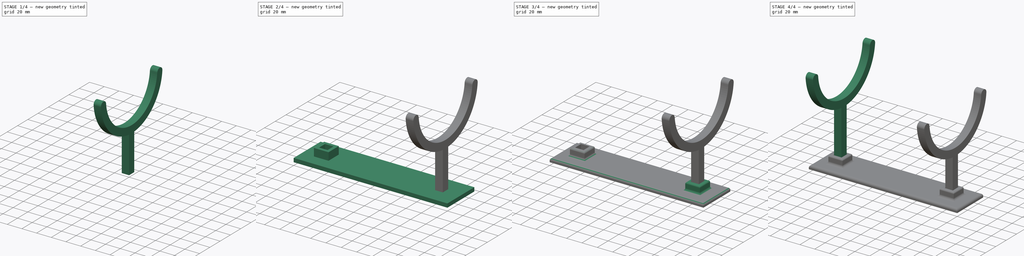
[diagram: build sequence overview — one tinted view per stage of 4, left to right]
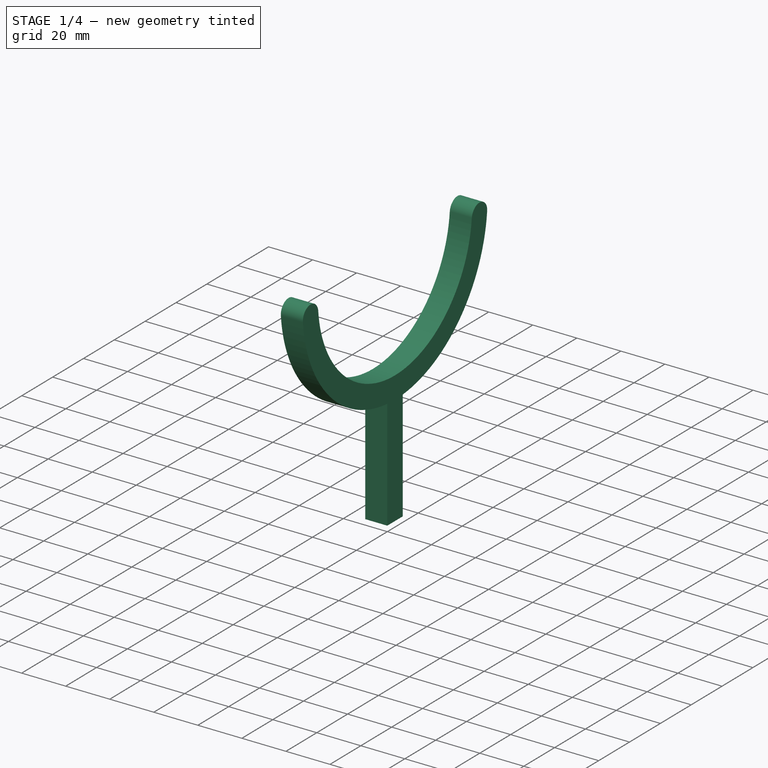
[diagram: stage 1 of 4 — iso view after this stage's code; geometry added in this stage tinted green]
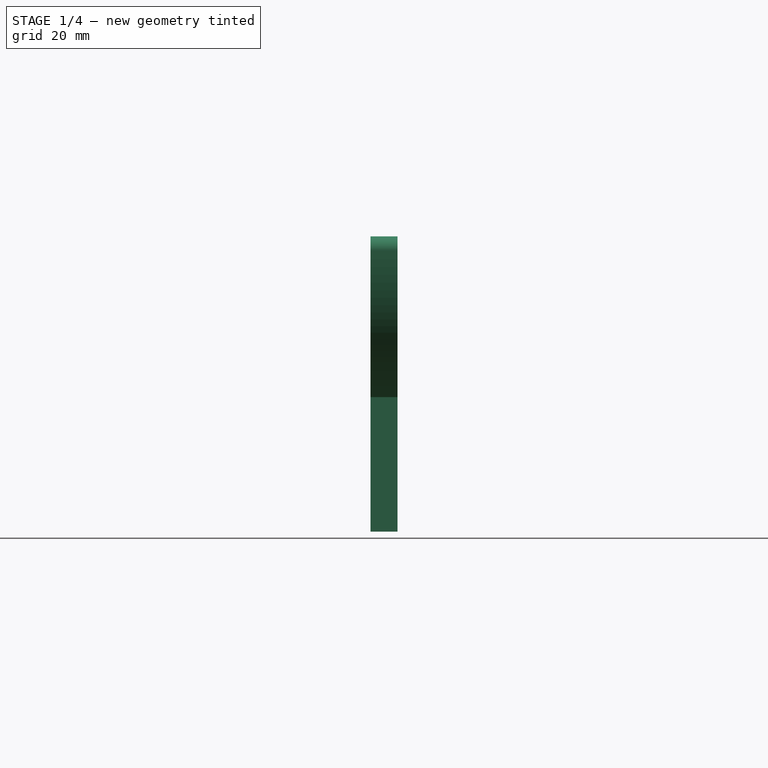
[diagram: stage 1 of 4 — front view after this stage's code; geometry added in this stage tinted green]
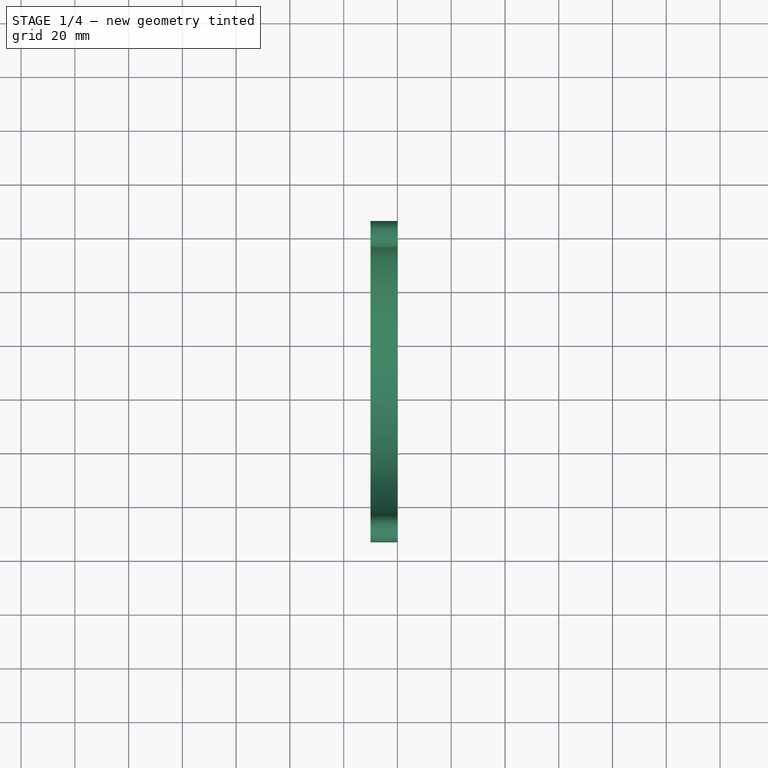
[diagram: stage 1 of 4 — top view after this stage's code; geometry added in this stage tinted green]
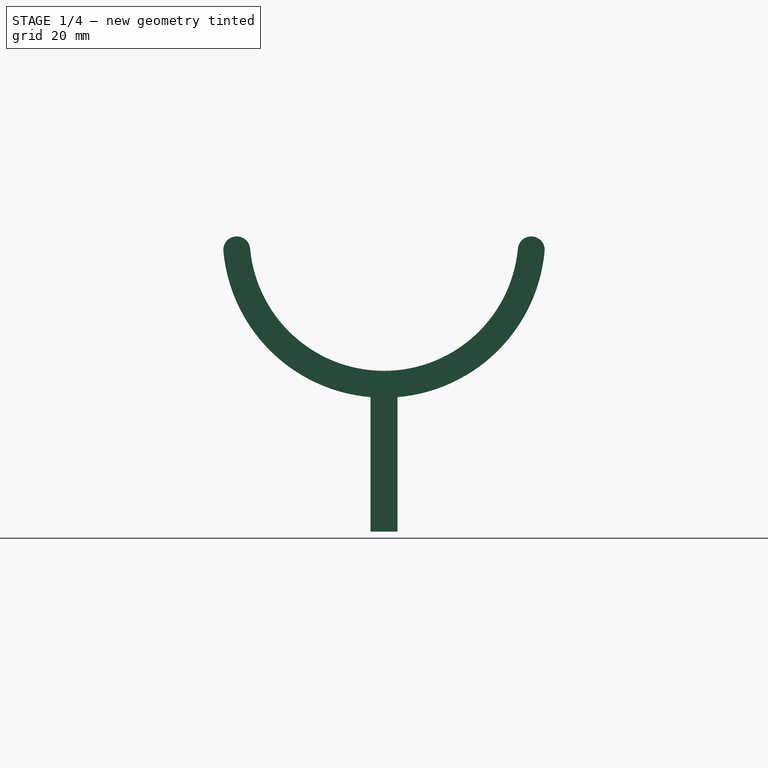
[diagram: stage 1 of 4 — right view after this stage's code; geometry added in this stage tinted green]
FCSTD DOCUMENT  (FreeCAD 0.19R24267 +99 (Git))
Label: exhaust_stand
License: All rights reserved
LicenseURL: http://en.wikipedia.org/wiki/All_rights_reserved
objects: Sketcher::SketchObject×4, PartDesign::Pad×4, PartDesign::Fillet×4, PartDesign::Body×3, PartDesign::LinearPattern×1
note: 24 computed .brp shape members not serialized (recipe doc carries the construction recipe); baked Part::Feature solids carry a one-line shape summary decoded from their .brp

FEATURE [PartDesign::Body] Body001  label="base"
  Group = -> [Sketch001,Sketch002,Pad001,Pad002,LinearPattern,Fillet001,Fillet002]
  Origin = -> Origin001
  Tip = -> Fillet002
FEATURE [Sketcher::SketchObject] Sketch003
  AttachmentOffset = pos=(0,0,150) rot=(0,0,1;0rad)
  FullyConstrained = true
  MapMode = 5
  Placement = pos=(150,-3.33e-14,3.33e-14) rot=(0.57735,0.57735,0.57735;2.0944rad)
  Support = -> [YZ_Plane002]
  sketch-geometry (10):
    g0: ArcOfCircle CenterX=5 CenterY=109.791 CenterZ=0 NormalX=0 NormalY=0 NormalZ=1 AngleXU=0 Radius=50 StartAngle=3.14159 EndAngle=6.28319
    g1: ArcOfCircle CenterX=5 CenterY=109.791 CenterZ=0 NormalX=0 NormalY=0 NormalZ=1 AngleXU=0 Radius=60 StartAngle=3.14159 EndAngle=4.62896
    g2: LineSegment StartX=-55 StartY=109.791 StartZ=0 EndX=-45 EndY=109.791 EndZ=0
    g3: LineSegment StartX=55 StartY=109.791 StartZ=0 EndX=65 EndY=109.791 EndZ=0
    g4: LineSegment StartX=5 StartY=109.791 StartZ=0 EndX=5 EndY=59.7913 EndZ=0
    g5: LineSegment StartX=8e-15 StartY=50 StartZ=0 EndX=8e-15 EndY=0 EndZ=0
    g6: LineSegment StartX=10 StartY=50 StartZ=0 EndX=10 EndY=0 EndZ=0
    g7: LineSegment StartX=8e-15 StartY=0 StartZ=0 EndX=10 EndY=0 EndZ=0
    g8: LineSegment StartX=5 StartY=59.7913 StartZ=0 EndX=5 EndY=0 EndZ=0
    g9: ArcOfCircle CenterX=5 CenterY=109.791 CenterZ=0 NormalX=0 NormalY=0 NormalZ=1 AngleXU=0 Radius=60 StartAngle=4.79582 EndAngle=6.28319
  constraints (30):
    c: Coincident(g0,g1)
    c: Coincident(g2,g1)
    c: Coincident(g2,g0)
    c: Coincident(g3,g0)
    c: Coincident(g3,g9)
    c: Perpendicular(g0,g3)
    c: Perpendicular(g0,g2)
    c: Distance(g2) = 10
    c: Horizontal(g2)
    c: Horizontal(g3)
    c: DistanceX(g0,g0) = 100
    c: Coincident(g4,g0)
    c: PointOnObject(g4,g0)
    c: Vertical(g4)
    c: DistanceY(g4,g4) = 50
    c: Vertical(g5)
    c: Vertical(g6)
    c: Coincident(g7,g5)
    c: Coincident(g7,g6)
    c: Horizontal(g7)
    c: Coincident(g8,g4)
    c: Symmetric(g5,g6,g8)
    c: DistanceX(g7,g7) = 10
    c: DistanceY(g5,g5) = 50
    c: Coincident(g5,g-1)
    c: Equal(g1,g9)
    c: Coincident(g9,g6)
    c: Coincident(g1,g9)
    c: Coincident(g1,g5)
    c: PointOnObject(g8,g7)
FEATURE [PartDesign::Pad] Pad003
  Direction = (1,1,1)
  Length = 10
  Length2 = 100
  Placement = pos=(0,0,0) rot=(0.57735,0.57735,0.57735;2.0944rad)
  Profile = -> Sketch003
  Type = 0
FEATURE [PartDesign::Fillet] Fillet003
  Base = -> Pad003 [Edge5,Edge8,Edge1,Edge2]
  BaseFeature = -> Pad003
  Placement = pos=(0,0,0) rot=(0.57735,0.57735,0.57735;2.0944rad)
  Radius = 4.9999
  SupportTransform = false
FEATURE [PartDesign::Body] Body002  label="stand_right"
  Group = -> [Sketch003,Pad003,Fillet003]
  Origin = -> Origin002
  Tip = -> Fillet003
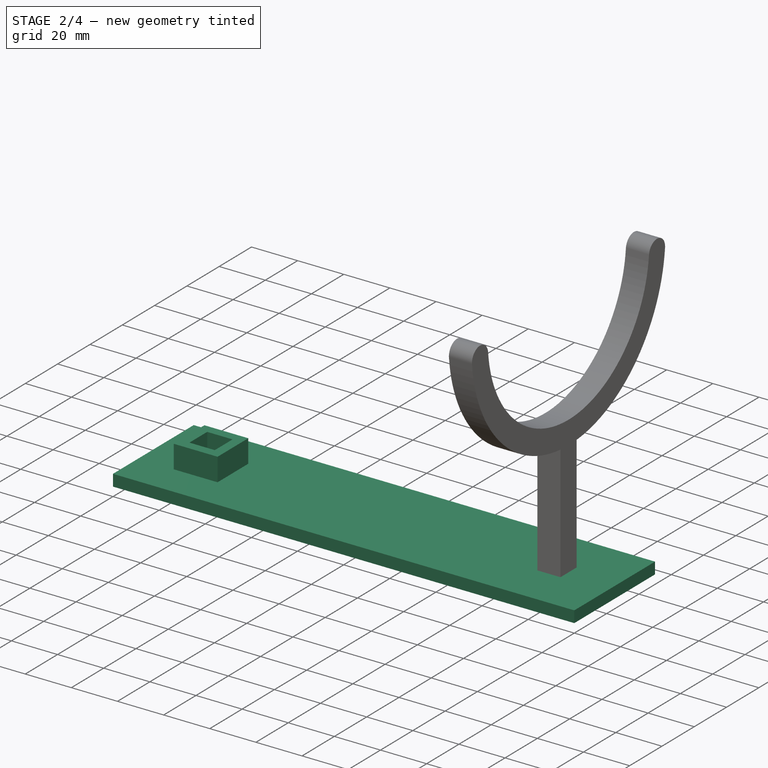
[diagram: stage 2 of 4 — iso view after this stage's code; geometry added in this stage tinted green]
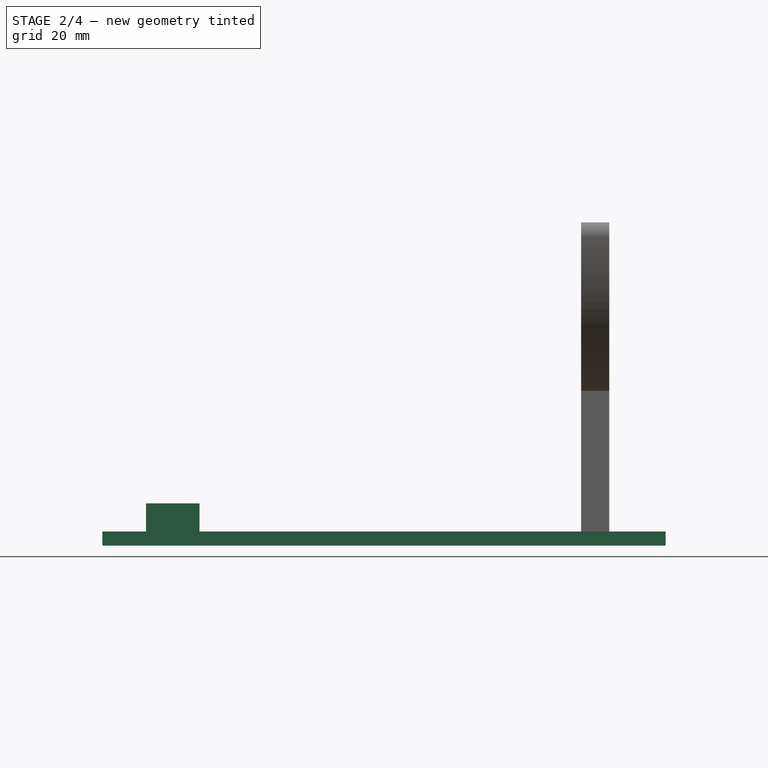
[diagram: stage 2 of 4 — front view after this stage's code; geometry added in this stage tinted green]
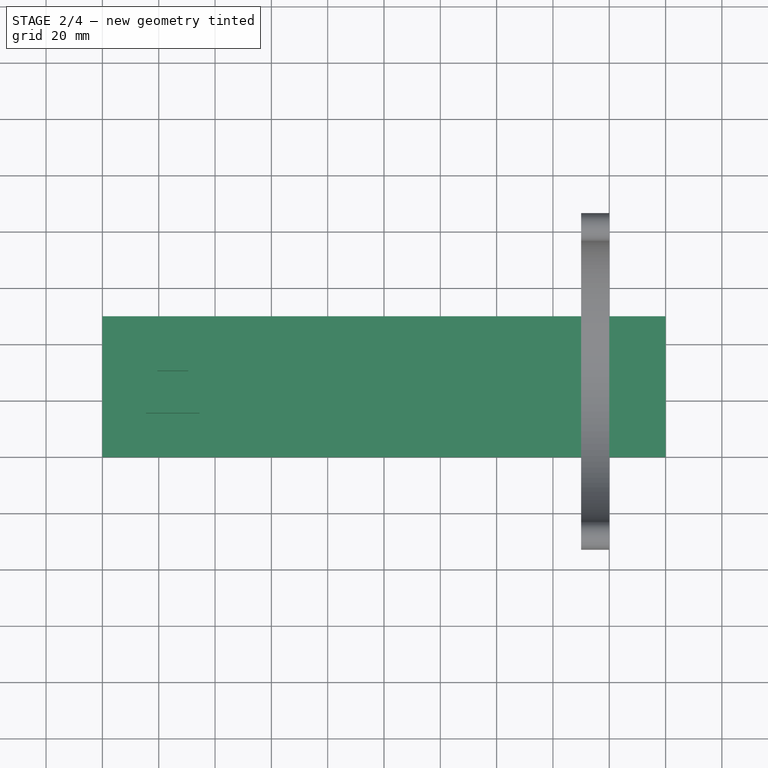
[diagram: stage 2 of 4 — top view after this stage's code; geometry added in this stage tinted green]
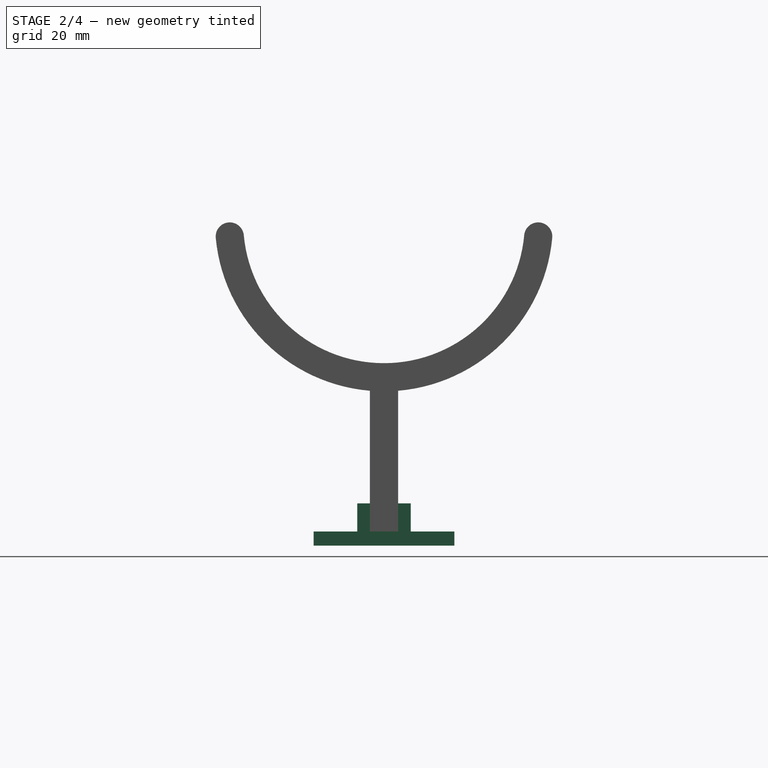
[diagram: stage 2 of 4 — right view after this stage's code; geometry added in this stage tinted green]
FEATURE [PartDesign::Body] Body  label="stand_left"
  Group = -> [Sketch,Pad,Fillet]
  Origin = -> Origin
  Tip = -> Fillet
FEATURE [Sketcher::SketchObject] Sketch001
  FullyConstrained = true
  MapMode = 5
  Support = -> [XY_Plane001]
  sketch-geometry (16):
    g0: LineSegment StartX=-20 StartY=-20 StartZ=0 EndX=180 EndY=-20 EndZ=0
    g1: LineSegment StartX=180 StartY=-20 StartZ=0 EndX=180 EndY=30 EndZ=0
    g2: LineSegment StartX=180 StartY=30 StartZ=0 EndX=-20 EndY=30 EndZ=0
    g3: LineSegment StartX=-20 StartY=30 StartZ=0 EndX=-20 EndY=-20 EndZ=0
    g4: LineSegment StartX=0 StartY=0 StartZ=0 EndX=10 EndY=0 EndZ=0
    g5: LineSegment StartX=10 StartY=0 StartZ=0 EndX=10 EndY=10 EndZ=0
    g6: LineSegment StartX=10 StartY=10 StartZ=0 EndX=0 EndY=10 EndZ=0
    g7: LineSegment StartX=0 StartY=10 StartZ=0 EndX=0 EndY=0 EndZ=0
    g8: LineSegment StartX=150 StartY=0 StartZ=0 EndX=160 EndY=0 EndZ=0
    g9: LineSegment StartX=160 StartY=0 StartZ=0 EndX=160 EndY=10 EndZ=0
    g10: LineSegment StartX=160 StartY=10 StartZ=0 EndX=150 EndY=10 EndZ=0
    g11: LineSegment StartX=150 StartY=10 StartZ=0 EndX=150 EndY=0 EndZ=0
    g12: LineSegment StartX=0 StartY=10 StartZ=0 EndX=-20 EndY=10 EndZ=0
    g13: LineSegment StartX=10 StartY=10 StartZ=0 EndX=10 EndY=30 EndZ=0
    g14: LineSegment StartX=160 StartY=10 StartZ=0 EndX=180 EndY=10 EndZ=0
    g15: LineSegment StartX=160 StartY=0 StartZ=0 EndX=160 EndY=-20 EndZ=0
  constraints (47):
    c: Coincident(g0,g1)
    c: Coincident(g1,g2)
    c: Coincident(g2,g3)
    c: Coincident(g3,g0)
    c: Horizontal(g0)
    c: Horizontal(g2)
    c: Vertical(g1)
    c: Vertical(g3)
    c: Coincident(g4,g5)
    c: Coincident(g5,g6)
    c: Coincident(g6,g7)
    c: Coincident(g7,g4)
    c: Horizontal(g4)
    c: Horizontal(g6)
    c: Vertical(g5)
    c: Vertical(g7)
    c: Coincident(g4,g-1)
    c: Coincident(g8,g9)
    c: Coincident(g9,g10)
    c: Coincident(g10,g11)
    c: Coincident(g11,g8)
    c: Horizontal(g8)
    c: Horizontal(g10)
    c: Vertical(g9)
    c: Vertical(g11)
    c: PointOnObject(g8,g-1)
    c: DistanceX(g4,g4) = 10
    c: Equal(g4,g5)
    c: Equal(g5,g8)
    c: Equal(g8,g9)
    c: DistanceX(g-1,g8) = 150
    c: Coincident(g12,g6)
    c: PointOnObject(g12,g3)
    c: Horizontal(g12)
    c: Coincident(g13,g5)
    c: PointOnObject(g13,g2)
    c: Vertical(g13)
    c: Coincident(g14,g9)
    c: PointOnObject(g14,g1)
    c: Horizontal(g14)
    c: Coincident(g15,g8)
    c: PointOnObject(g15,g0)
    c: Vertical(g15)
    c: DistanceX(g12,g12) = 20
    c: Equal(g12,g13)
    c: Equal(g13,g15)
    c: Equal(g15,g14)
FEATURE [Sketcher::SketchObject] Sketch002
  FullyConstrained = true
  MapMode = 5
  Support = -> [XY_Plane001]
  sketch-geometry (20):
    g0: LineSegment StartX=0 StartY=0 StartZ=0 EndX=10 EndY=0 EndZ=0
    g1: LineSegment StartX=10 StartY=0 StartZ=0 EndX=10 EndY=10 EndZ=0
    g2: LineSegment StartX=10 StartY=10 StartZ=0 EndX=0 EndY=10 EndZ=0
    g3: LineSegment StartX=0 StartY=10 StartZ=0 EndX=0 EndY=0 EndZ=0
    g4: LineSegment StartX=-4.5 StartY=14.5 StartZ=0 EndX=14.5 EndY=14.5 EndZ=0
    g5: LineSegment StartX=14.5 StartY=14.5 StartZ=0 EndX=14.5 EndY=-4.5 EndZ=0
    g6: LineSegment StartX=14.5 StartY=-4.5 StartZ=0 EndX=-4.5 EndY=-4.5 EndZ=0
    g7: LineSegment StartX=-4.5 StartY=-4.5 StartZ=0 EndX=-4.5 EndY=14.5 EndZ=0
    g8: LineSegment StartX=-0.5 StartY=10.5 StartZ=0 EndX=10.5 EndY=10.5 EndZ=0
    g9: LineSegment StartX=10.5 StartY=10.5 StartZ=0 EndX=10.5 EndY=-0.5 EndZ=0
    g10: LineSegment StartX=10.5 StartY=-0.5 StartZ=0 EndX=-0.5 EndY=-0.5 EndZ=0
    g11: LineSegment StartX=-0.5 StartY=-0.5 StartZ=0 EndX=-0.5 EndY=10.5 EndZ=0
    g12: LineSegment StartX=0 StartY=10 StartZ=0 EndX=-0.5 EndY=10 EndZ=0
    g13: LineSegment StartX=-0.5 StartY=10.5 StartZ=0 EndX=-4.5 EndY=10.5 EndZ=0
    g14: LineSegment StartX=10 StartY=10 StartZ=0 EndX=10 EndY=10.5 EndZ=0
    g15: LineSegment StartX=10.5 StartY=10.5 StartZ=0 EndX=10.5 EndY=14.5 EndZ=0
    g16: LineSegment StartX=10 StartY=10 StartZ=0 EndX=10.5 EndY=10 EndZ=0
    g17: LineSegment StartX=10.5 StartY=10.5 StartZ=0 EndX=14.5 EndY=10.5 EndZ=0
    g18: LineSegment StartX=10 StartY=0 StartZ=0 EndX=10 EndY=-0.5 EndZ=0
    g19: LineSegment StartX=10.5 StartY=-0.5 StartZ=0 EndX=10.5 EndY=-4.5 EndZ=0
  constraints (59):
    c: Coincident(g0,g1)
    c: Coincident(g1,g2)
    c: Coincident(g2,g3)
    c: Coincident(g3,g0)
    c: Horizontal(g0)
    c: Horizontal(g2)
    c: Vertical(g1)
    c: Vertical(g3)
    c: Coincident(g0,g-1)
    c: DistanceX(g0,g0) = 10
    c: Equal(g0,g3)
    c: Coincident(g4,g5)
    c: Coincident(g5,g6)
    c: Coincident(g6,g7)
    c: Coincident(g7,g4)
    c: Horizontal(g4)
    c: Horizontal(g6)
    c: Vertical(g5)
    c: Vertical(g7)
    c: Coincident(g8,g9)
    c: Coincident(g9,g10)
    c: Coincident(g10,g11)
    c: Coincident(g11,g8)
    c: Horizontal(g8)
    c: Horizontal(g10)
    c: Vertical(g9)
    c: Vertical(g11)
    c: Coincident(g12,g2)
    c: PointOnObject(g12,g11)
    c: Horizontal(g12)
    c: Coincident(g13,g8)
    c: PointOnObject(g13,g7)
    c: Horizontal(g13)
    c: Coincident(g14,g1)
    c: PointOnObject(g14,g8)
    c: Vertical(g14)
    c: Coincident(g15,g8)
    c: PointOnObject(g15,g4)
    c: Vertical(g15)
    c: Coincident(g16,g1)
    c: PointOnObject(g16,g9)
    c: Horizontal(g16)
    c: Coincident(g17,g8)
    c: PointOnObject(g17,g5)
    c: Horizontal(g17)
    c: Coincident(g18,g0)
    c: PointOnObject(g18,g10)
    c: Vertical(g18)
    c: Coincident(g19,g9)
    c: PointOnObject(g19,g6)
    c: Vertical(g19)
    c: Equal(g12,g14)
    c: Equal(g14,g16)
    c: Equal(g16,g18)
    c: DistanceX(g10,g10) = 11
    c: Equal(g13,g15)
    c: Equal(g15,g17)
    c: Equal(g17,g19)
    c: DistanceX(g13,g13) = 4
FEATURE [PartDesign::Pad] Pad001
  Direction = (1,1,1)
  Length = 10
  Length2 = 100
  Profile = -> Sketch002
  Type = 0
FEATURE [PartDesign::Pad] Pad002
  BaseFeature = -> Pad001
  Direction = (1,1,1)
  Length = 5
  Length2 = 100
  Profile = -> Sketch001
  Reversed = true
  Type = 0
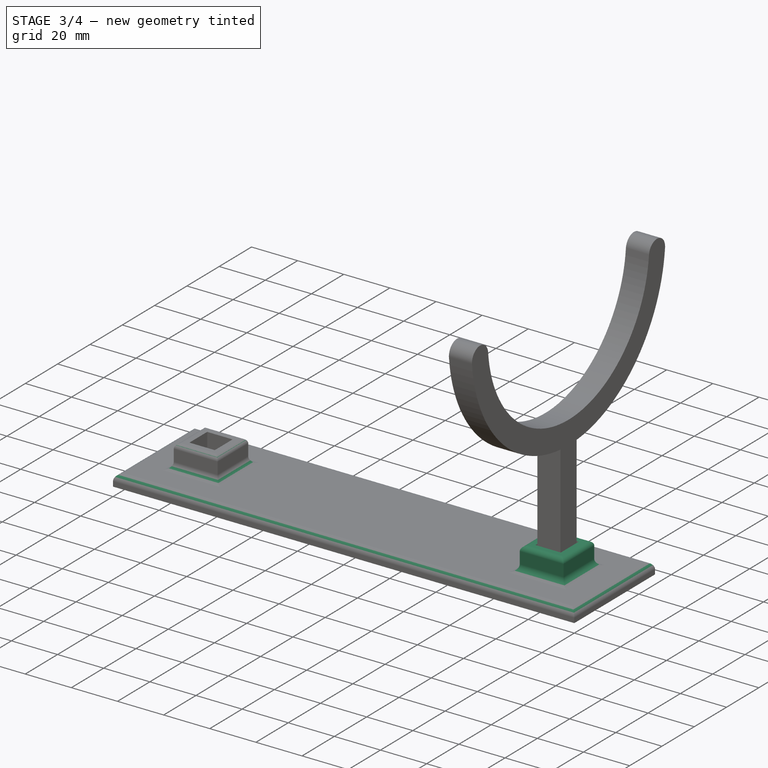
[diagram: stage 3 of 4 — iso view after this stage's code; geometry added in this stage tinted green]
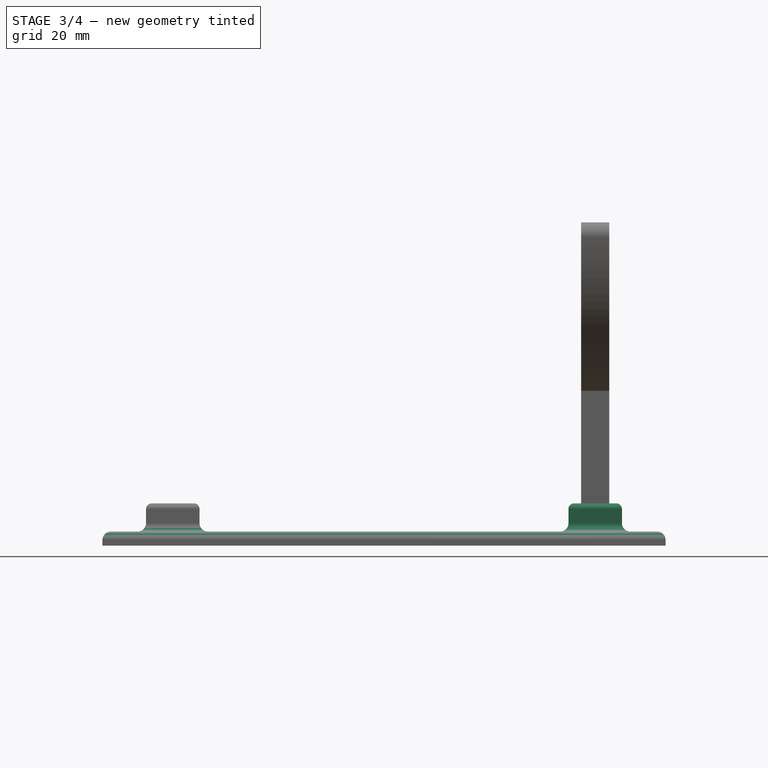
[diagram: stage 3 of 4 — front view after this stage's code; geometry added in this stage tinted green]
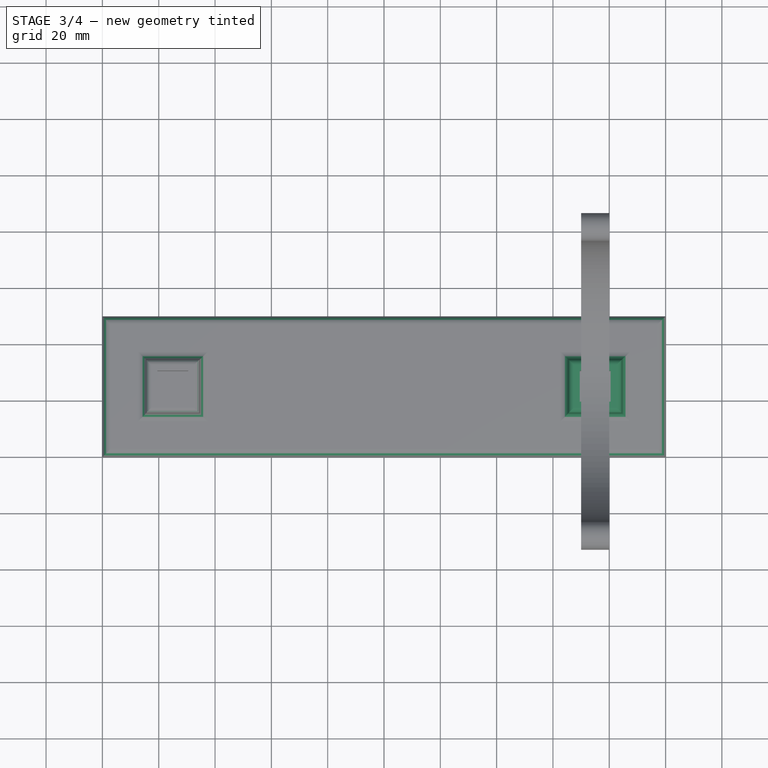
[diagram: stage 3 of 4 — top view after this stage's code; geometry added in this stage tinted green]
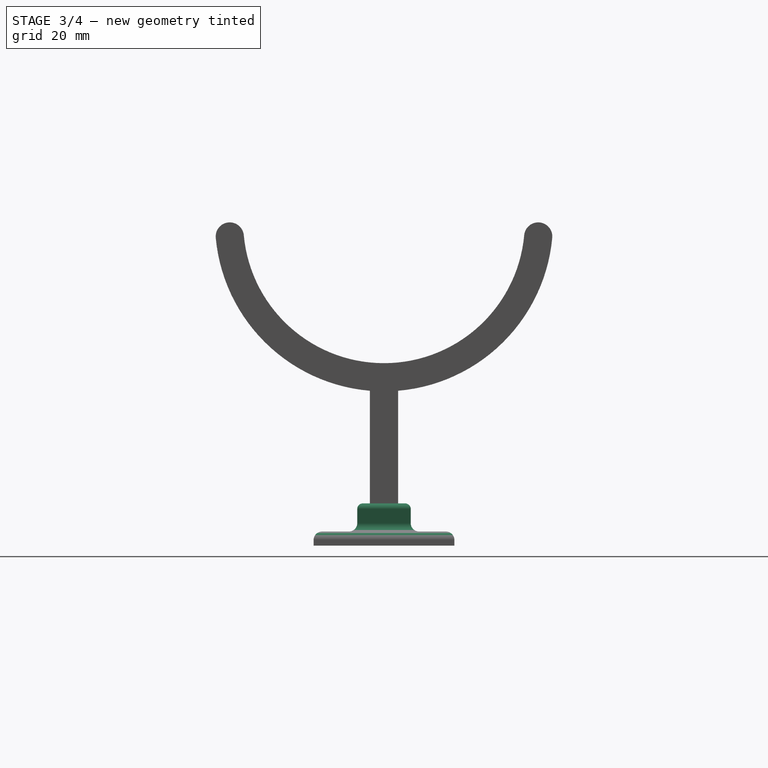
[diagram: stage 3 of 4 — right view after this stage's code; geometry added in this stage tinted green]
FEATURE [PartDesign::LinearPattern] LinearPattern
  BaseFeature = -> Pad002
  Direction = -> Sketch002 [H_Axis]
  Length = 150
  Occurrences = 2
  Originals = -> [Pad001]
FEATURE [PartDesign::Fillet] Fillet001
  Base = -> LinearPattern [Face4]
  BaseFeature = -> LinearPattern
  Radius = 3
  SupportTransform = false
FEATURE [PartDesign::Fillet] Fillet002
  Base = -> Fillet001 [Edge46,Edge50,Edge52,Edge49,Edge58,Edge60,Edge57,Edge54]
  BaseFeature = -> Fillet001
  Radius = 2
  SupportTransform = false
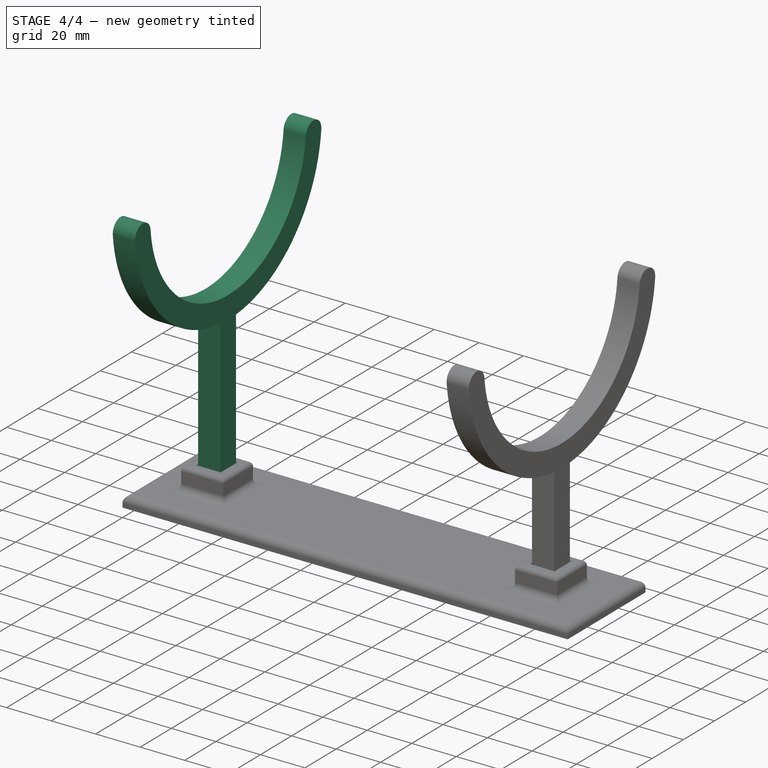
[diagram: stage 4 of 4 — iso view after this stage's code; geometry added in this stage tinted green]
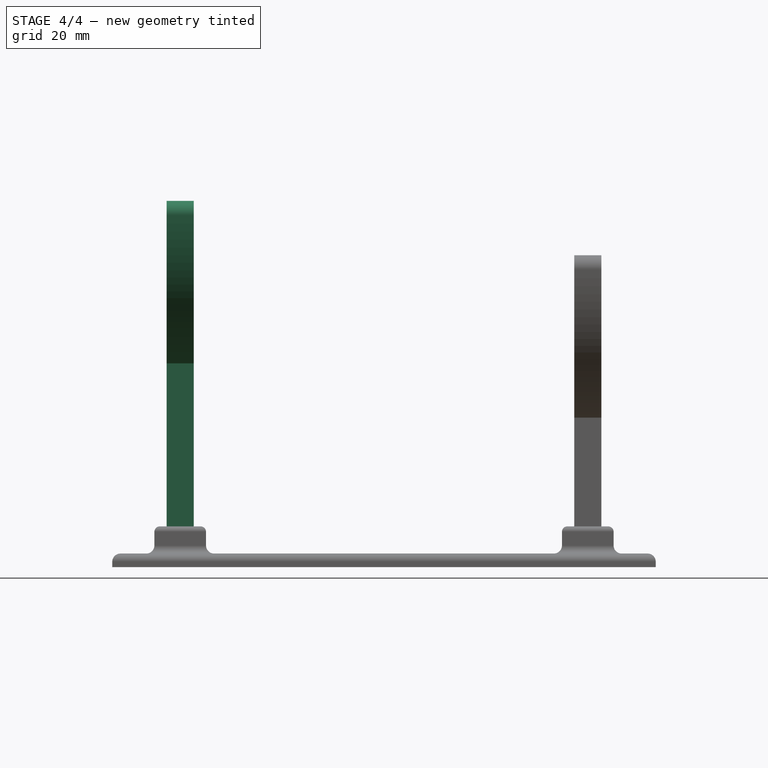
[diagram: stage 4 of 4 — front view after this stage's code; geometry added in this stage tinted green]
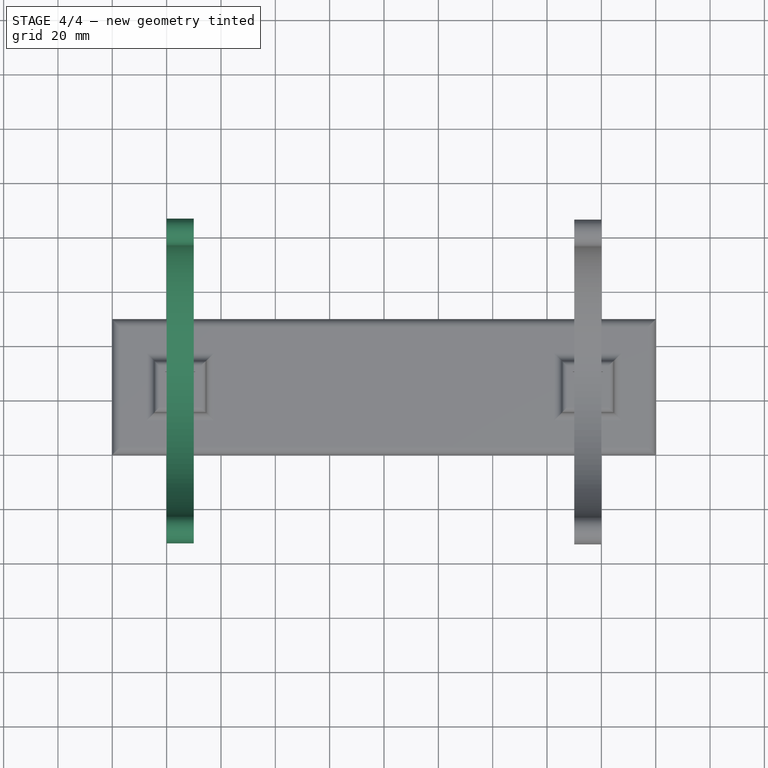
[diagram: stage 4 of 4 — top view after this stage's code; geometry added in this stage tinted green]
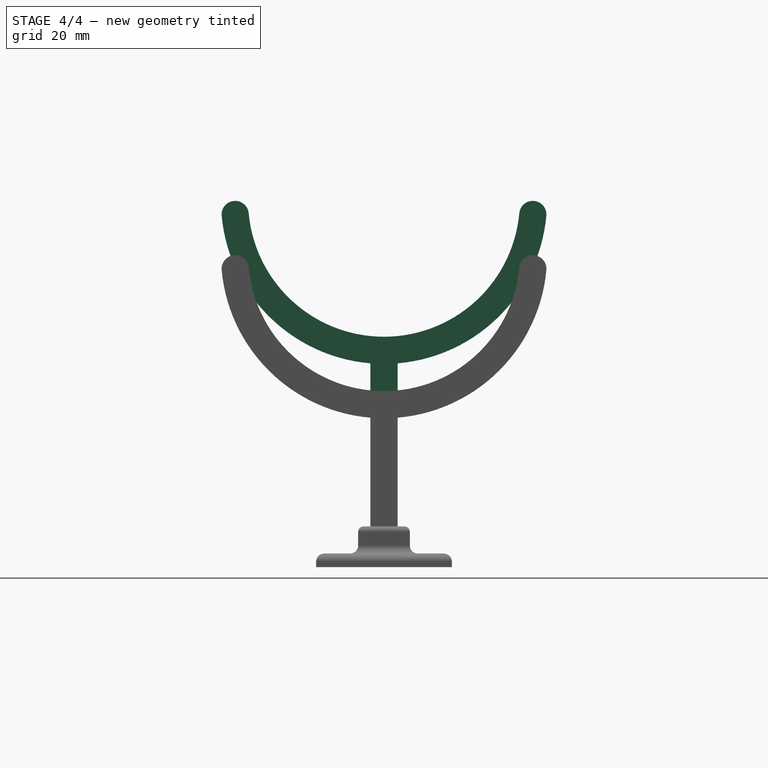
[diagram: stage 4 of 4 — right view after this stage's code; geometry added in this stage tinted green]
FEATURE [Sketcher::SketchObject] Sketch
  FullyConstrained = true
  MapMode = 5
  Placement = pos=(0,0,0) rot=(0.57735,0.57735,0.57735;2.0944rad)
  Support = -> [YZ_Plane]
  sketch-geometry (10):
    g0: ArcOfCircle CenterX=5 CenterY=129.791 CenterZ=0 NormalX=0 NormalY=0 NormalZ=1 AngleXU=0 Radius=50 StartAngle=3.14159 EndAngle=6.28319
    g1: ArcOfCircle CenterX=5 CenterY=129.791 CenterZ=0 NormalX=0 NormalY=0 NormalZ=1 AngleXU=0 Radius=60 StartAngle=3.14159 EndAngle=4.62896
    g2: LineSegment StartX=-55 StartY=129.791 StartZ=0 EndX=-45 EndY=129.791 EndZ=0
    g3: LineSegment StartX=55 StartY=129.791 StartZ=0 EndX=65 EndY=129.791 EndZ=0
    g4: LineSegment StartX=5 StartY=129.791 StartZ=0 EndX=5 EndY=79.7913 EndZ=0
    g5: LineSegment StartX=0 StartY=70 StartZ=0 EndX=0 EndY=0 EndZ=0
    g6: LineSegment StartX=10 StartY=70 StartZ=0 EndX=10 EndY=0 EndZ=0
    g7: LineSegment StartX=0 StartY=0 StartZ=0 EndX=10 EndY=0 EndZ=0
    g8: LineSegment StartX=5 StartY=79.7913 StartZ=0 EndX=5 EndY=0 EndZ=0
    g9: ArcOfCircle CenterX=5 CenterY=129.791 CenterZ=0 NormalX=0 NormalY=0 NormalZ=1 AngleXU=0 Radius=60 StartAngle=4.79582 EndAngle=6.28319
  constraints (30):
    c: Coincident(g0,g1)
    c: Coincident(g2,g1)
    c: Coincident(g2,g0)
    c: Coincident(g3,g0)
    c: Coincident(g3,g9)
    c: Perpendicular(g0,g3)
    c: Perpendicular(g0,g2)
    c: Distance(g2) = 10
    c: Horizontal(g2)
    c: Horizontal(g3)
    c: DistanceX(g0,g0) = 100
    c: Coincident(g4,g0)
    c: PointOnObject(g4,g0)
    c: Vertical(g4)
    c: DistanceY(g4,g4) = 50
    c: Vertical(g5)
    c: Vertical(g6)
    c: Coincident(g7,g5)
    c: Coincident(g7,g6)
    c: Horizontal(g7)
    c: Coincident(g8,g4)
    c: Symmetric(g5,g6,g8)
    c: DistanceX(g7,g7) = 10
    c: DistanceY(g5,g5) = 70
    c: Coincident(g5,g-1)
    c: Equal(g1,g9)
    c: Coincident(g9,g6)
    c: Coincident(g1,g9)
    c: Coincident(g1,g5)
    c: PointOnObject(g8,g7)
FEATURE [PartDesign::Pad] Pad
  Direction = (1,1,1)
  Length = 10
  Length2 = 100
  Placement = pos=(0,0,0) rot=(0.57735,0.57735,0.57735;2.0944rad)
  Profile = -> Sketch
  Type = 0
FEATURE [PartDesign::Fillet] Fillet
  Base = -> Pad [Edge5,Edge8,Edge1,Edge2]
  BaseFeature = -> Pad
  Placement = pos=(0,0,0) rot=(0.57735,0.57735,0.57735;2.0944rad)
  Radius = 4.9999
  SupportTransform = false
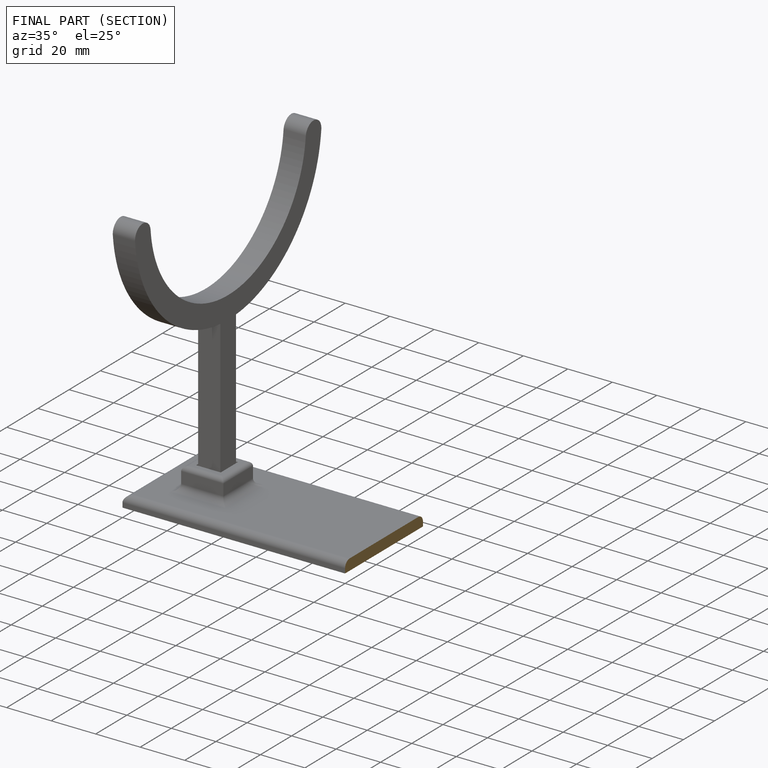
[diagram: finished part — half-section view (interior)]
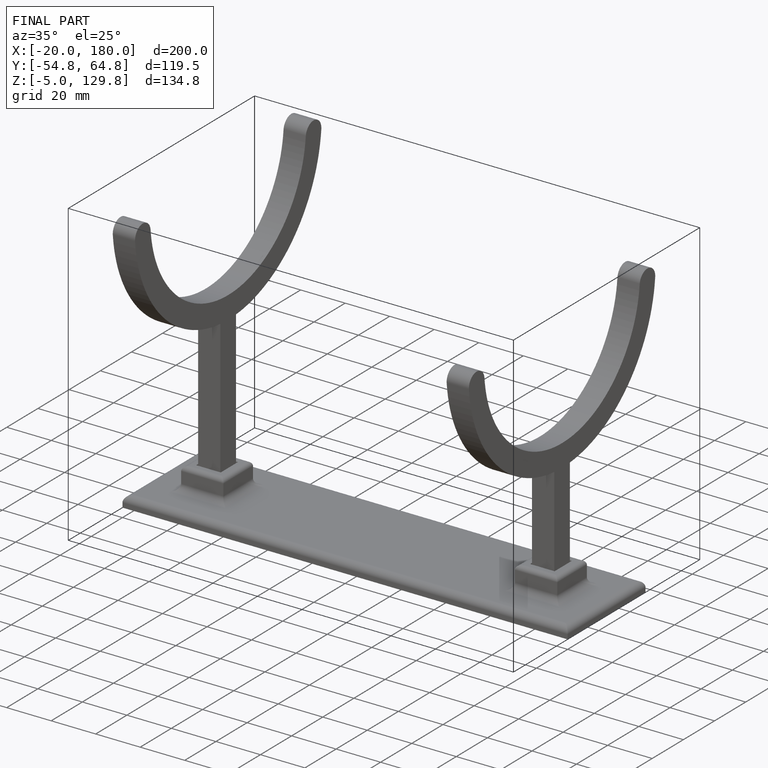
[diagram: finished part — iso view with bounding-box wireframe]
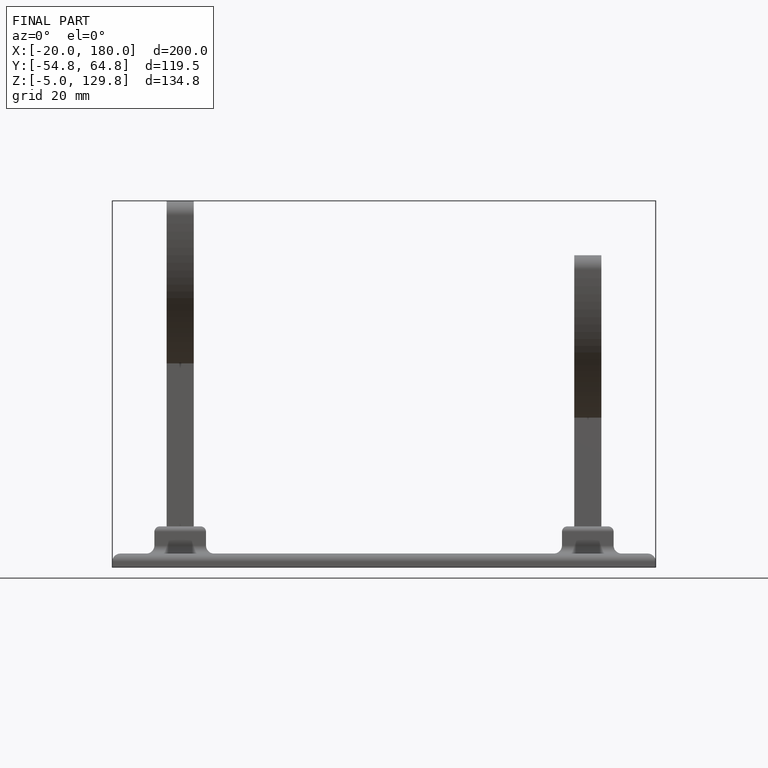
[diagram: finished part — front view with bounding-box wireframe]
